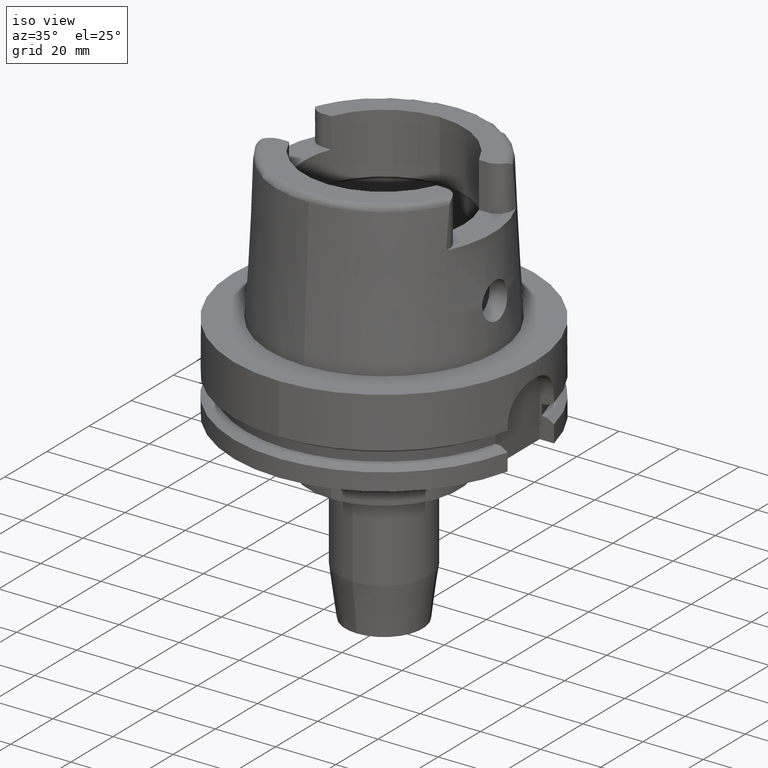
[diagram: clean part render]
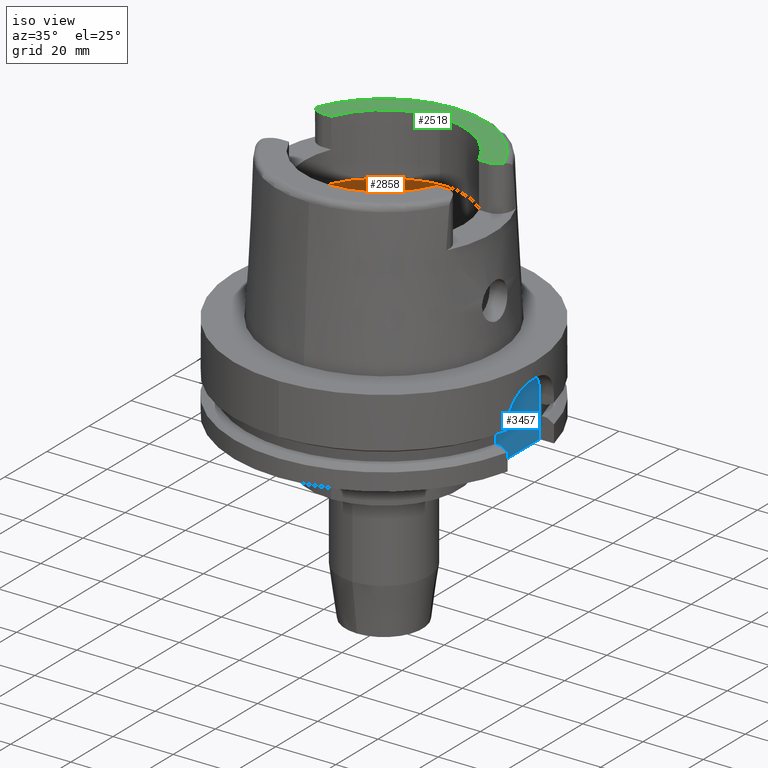
[diagram: same view with three faces highlighted in distinct colors, each labeled with its STEP entity id]
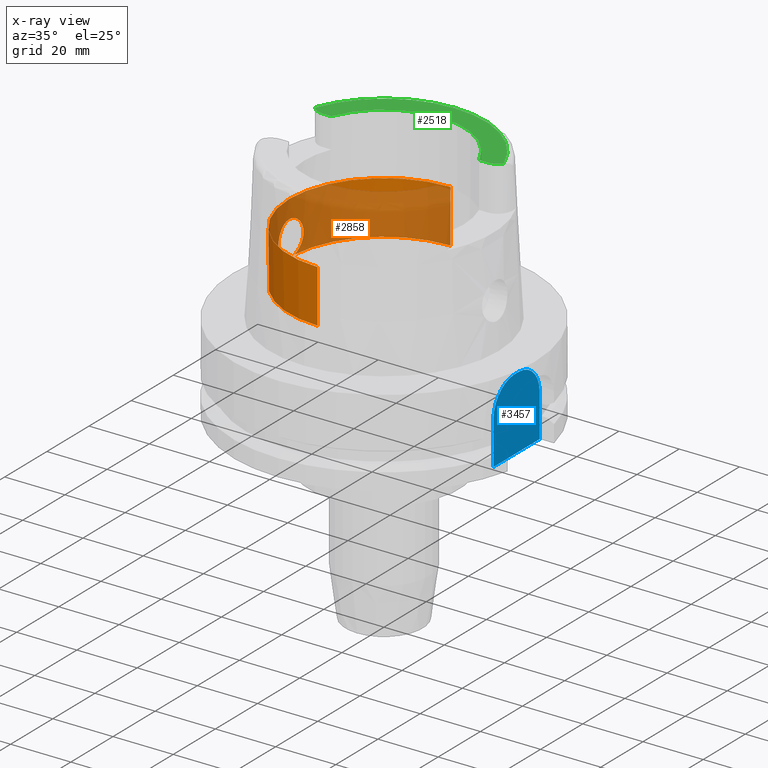
[diagram: x-ray of the same camera — body ghosted, the three highlighted faces saturated]
A machine part, iso view with three faces highlighted in distinct colors.
The next image is the same camera in x-ray (body ghosted, the three faces saturated) — at least one of them is partly hidden behind the body in this view.
Their STEP definitions:

[orange] entity #2858 — the highlighted cylindrical surface (partial cylindrical patch) has radius 31.5 mm, axis along (0, 0, 1).
#548=CARTESIAN_POINT('',(0.E0,0.E0,2.711662432703E1));
#549=DIRECTION('',(0.E0,0.E0,1.E0));
#550=DIRECTION('',(0.E0,1.E0,0.E0));
#551=AXIS2_PLACEMENT_3D('',#548,#549,#550);
#571=CARTESIAN_POINT('',(-3.15E1,0.E0,2.1E1));
#572=CARTESIAN_POINT('',(-3.15E1,-5.028532056707E-1,2.1E1));
#573=CARTESIAN_POINT('',(-3.147635693276E1,-1.477318983451E0,2.087767610122E1));
#574=CARTESIAN_POINT('',(-3.137748643580E1,-2.881225018081E0,2.033448291085E1));
#575=CARTESIAN_POINT('',(-3.123752490984E1,-4.108909748463E0,1.945786671436E1));
#576=CARTESIAN_POINT('',(-3.109048665438E1,-5.085308316507E0,1.830165228897E1));
#577=CARTESIAN_POINT('',(-3.097325566486E1,-5.742860613084E0,1.694118478400E1));
#578=CARTESIAN_POINT('',(-3.091493840308E1,-6.042620727541E0,1.547624908147E1));
#579=CARTESIAN_POINT('',(-3.092830792269E1,-5.975339359442E0,1.398264399200E1));
#580=CARTESIAN_POINT('',(-3.100981190959E1,-5.546015321639E0,1.255499961413E1));
#581=CARTESIAN_POINT('',(-3.114018807492E1,-4.778537339485E0,1.126832000287E1));
#582=CARTESIAN_POINT('',(-3.128904325051E1,-3.703317123115E0,1.020163221635E1));
#583=CARTESIAN_POINT('',(-3.137382618639E1,-2.854860646541E0,9.698448159666E0));
#584=CARTESIAN_POINT('',(-3.140918884336E1,-2.390158196044E0,9.496624327026E0));
#589=DIRECTION('',(0.E0,4.980251297750E-14,1.E0));
#590=VECTOR('',#589,1.762E1);
#591=CARTESIAN_POINT('',(0.E0,-3.15E1,9.496624327026E0));
#592=LINE('',#591,#590);
#596=CARTESIAN_POINT('',(-3.140918884336E1,2.390158196044E0,9.496624327026E0));
#597=CARTESIAN_POINT('',(-3.137368194211E1,2.856756167822E0,9.699271399073E0));
#598=CARTESIAN_POINT('',(-3.128852161057E1,3.708063163374E0,1.020475727012E1));
#599=CARTESIAN_POINT('',(-3.113914031352E1,4.785404064154E0,1.127652107333E1));
#600=CARTESIAN_POINT('',(-3.100870291288E1,5.552129335929E0,1.256819141113E1));
#601=CARTESIAN_POINT('',(-3.092768516395E1,5.978501280126E0,1.400010405144E1));
#602=CARTESIAN_POINT('',(-3.091523044570E1,6.041157802764E0,1.549577584156E1));
#603=CARTESIAN_POINT('',(-3.097449795885E1,5.736305879417E0,1.696054205435E1));
#604=CARTESIAN_POINT('',(-3.109231256700E1,5.074330839424E0,1.831827859569E1));
#605=CARTESIAN_POINT('',(-3.123925705619E1,4.095793916094E0,1.946956816706E1));
#606=CARTESIAN_POINT('',(-3.137856584299E1,2.869018412907E0,2.034059590541E1));
#607=CARTESIAN_POINT('',(-3.147662931804E1,1.469573877626E0,2.087907033856E1));
#608=CARTESIAN_POINT('',(-3.15E1,4.999369039843E-1,2.1E1));
#609=CARTESIAN_POINT('',(-3.15E1,0.E0,2.1E1));
#648=CARTESIAN_POINT('',(0.E0,0.E0,9.496624327026E0));
#649=DIRECTION('',(0.E0,0.E0,-1.E0));
#650=DIRECTION('',(-9.971171061384E-1,7.587803796965E-2,0.E0));
#651=AXIS2_PLACEMENT_3D('',#648,#649,#650);
#672=CARTESIAN_POINT('',(0.E0,0.E0,9.496624327026E0));
#673=DIRECTION('',(0.E0,0.E0,-1.E0));
#674=DIRECTION('',(0.E0,-1.E0,0.E0));
#675=AXIS2_PLACEMENT_3D('',#672,#673,#674);
#775=DIRECTION('',(0.E0,-4.980251297750E-14,1.E0));
#776=VECTOR('',#775,1.762E1);
#777=CARTESIAN_POINT('',(0.E0,3.15E1,9.496624327026E0));
#778=LINE('',#777,#776);
#2267=CARTESIAN_POINT('',(0.E0,3.15E1,2.711662432703E1));
#2268=VERTEX_POINT('',#2267);
#2269=CARTESIAN_POINT('',(0.E0,-3.15E1,2.711662432703E1));
#2270=VERTEX_POINT('',#2269);
#2271=VERTEX_POINT('',#571);
#2272=VERTEX_POINT('',#584);
#2273=CARTESIAN_POINT('',(0.E0,-3.15E1,9.496624327026E0));
#2274=VERTEX_POINT('',#2273);
#2275=CARTESIAN_POINT('',(0.E0,3.15E1,9.496624327026E0));
#2276=VERTEX_POINT('',#2275);
#2277=CARTESIAN_POINT('',(-3.140918884336E1,2.390158196044E0,9.496624327026E0));
#2278=VERTEX_POINT('',#2277);
#2838=CARTESIAN_POINT('',(0.E0,0.E0,-9.7E1));
#2839=DIRECTION('',(0.E0,0.E0,1.E0));
#2840=DIRECTION('',(0.E0,1.E0,0.E0));
#2841=AXIS2_PLACEMENT_3D('',#2838,#2839,#2840);
#2842=CYLINDRICAL_SURFACE('',#2841,3.15E1);
#2844=ORIENTED_EDGE('',*,*,#2843,.T.);
#2846=ORIENTED_EDGE('',*,*,#2845,.F.);
#2848=ORIENTED_EDGE('',*,*,#2847,.T.);
#2849=ORIENTED_EDGE('',*,*,#2831,.F.);
#2851=ORIENTED_EDGE('',*,*,#2850,.F.);
#2853=ORIENTED_EDGE('',*,*,#2852,.F.);
#2855=ORIENTED_EDGE('',*,*,#2854,.T.);
#2856=EDGE_LOOP('',(#2844,#2846,#2848,#2849,#2851,#2853,#2855));
#2857=FACE_OUTER_BOUND('',#2856,.F.);
#552=CIRCLE('',#551,3.15E1);
#585=B_SPLINE_CURVE_WITH_KNOTS('',3,(#571,#572,#573,#574,#575,#576,#577,#578,
#579,#580,#581,#582,#583,#584),.UNSPECIFIED.,.F.,.F.,(4,1,1,1,1,1,1,1,1,1,1,4),(
0.E0,9.090909090909E-2,1.818181818182E-1,2.727272727273E-1,3.636363636364E-1,
4.545454545455E-1,5.454545454545E-1,6.363636363636E-1,7.272727272727E-1,
8.181818181818E-1,9.090909090909E-1,1.E0),.UNSPECIFIED.);
#610=B_SPLINE_CURVE_WITH_KNOTS('',3,(#596,#597,#598,#599,#600,#601,#602,#603,
#604,#605,#606,#607,#608,#609),.UNSPECIFIED.,.F.,.F.,(4,1,1,1,1,1,1,1,1,1,1,4),(
0.E0,9.090909090909E-2,1.818181818182E-1,2.727272727273E-1,3.636363636364E-1,
4.545454545455E-1,5.454545454545E-1,6.363636363636E-1,7.272727272727E-1,
8.181818181818E-1,9.090909090909E-1,1.E0),.UNSPECIFIED.);
#652=CIRCLE('',#651,3.15E1);
#676=CIRCLE('',#675,3.15E1);
#2831=EDGE_CURVE('',#2268,#2270,#552,.T.);
#2843=EDGE_CURVE('',#2271,#2272,#585,.T.);
#2845=EDGE_CURVE('',#2274,#2272,#676,.T.);
#2847=EDGE_CURVE('',#2274,#2270,#592,.T.);
#2850=EDGE_CURVE('',#2276,#2268,#778,.T.);
#2852=EDGE_CURVE('',#2278,#2276,#652,.T.);
#2854=EDGE_CURVE('',#2278,#2271,#610,.T.);
#2858=ADVANCED_FACE('',(#2857),#2842,.F.);

[blue] entity #3457 — the highlighted planar face has unit normal (1, 0, 0).
#1290=DIRECTION('',(0.E0,-1.E0,0.E0));
#1291=VECTOR('',#1290,2.2E1);
#1292=CARTESIAN_POINT('',(4.4E1,1.1E1,-2.9E1));
#1293=LINE('',#1292,#1291);
#1297=DIRECTION('',(0.E0,0.E0,1.E0));
#1298=VECTOR('',#1297,1.4E1);
#1299=CARTESIAN_POINT('',(4.4E1,-1.1E1,-2.9E1));
#1300=LINE('',#1299,#1298);
#1304=CARTESIAN_POINT('',(4.4E1,-1.E0,-1.5E1));
#1305=DIRECTION('',(-1.E0,0.E0,0.E0));
#1306=DIRECTION('',(0.E0,-1.E0,0.E0));
#1307=AXIS2_PLACEMENT_3D('',#1304,#1305,#1306);
#1312=DIRECTION('',(0.E0,1.E0,0.E0));
#1313=VECTOR('',#1312,2.E0);
#1314=CARTESIAN_POINT('',(4.4E1,-1.E0,-5.E0));
#1315=LINE('',#1314,#1313);
#1319=CARTESIAN_POINT('',(4.4E1,1.E0,-1.5E1));
#1320=DIRECTION('',(-1.E0,0.E0,0.E0));
#1321=DIRECTION('',(0.E0,2.084998840246E-14,1.E0));
#1322=AXIS2_PLACEMENT_3D('',#1319,#1320,#1321);
#1327=DIRECTION('',(0.E0,0.E0,-1.E0));
#1328=VECTOR('',#1327,1.4E1);
#1329=CARTESIAN_POINT('',(4.4E1,1.1E1,-1.5E1));
#1330=LINE('',#1329,#1328);
#2367=CARTESIAN_POINT('',(4.4E1,-1.1E1,-2.9E1));
#2368=VERTEX_POINT('',#2367);
#2369=CARTESIAN_POINT('',(4.4E1,1.1E1,-2.9E1));
#2370=VERTEX_POINT('',#2369);
#2489=CARTESIAN_POINT('',(4.4E1,1.E0,-5.E0));
#2490=VERTEX_POINT('',#2489);
#2491=CARTESIAN_POINT('',(4.4E1,-1.E0,-5.E0));
#2492=VERTEX_POINT('',#2491);
#2493=CARTESIAN_POINT('',(4.4E1,1.1E1,-1.5E1));
#2494=VERTEX_POINT('',#2493);
#2495=CARTESIAN_POINT('',(4.4E1,-1.1E1,-1.5E1));
#2496=VERTEX_POINT('',#2495);
#3440=CARTESIAN_POINT('',(4.4E1,0.E0,0.E0));
#3441=DIRECTION('',(1.E0,0.E0,0.E0));
#3442=DIRECTION('',(0.E0,0.E0,-1.E0));
#3443=AXIS2_PLACEMENT_3D('',#3440,#3441,#3442);
#3444=PLANE('',#3443);
#3445=ORIENTED_EDGE('',*,*,#3355,.T.);
#3447=ORIENTED_EDGE('',*,*,#3446,.T.);
#3449=ORIENTED_EDGE('',*,*,#3448,.T.);
#3451=ORIENTED_EDGE('',*,*,#3450,.T.);
#3453=ORIENTED_EDGE('',*,*,#3452,.T.);
#3454=ORIENTED_EDGE('',*,*,#3420,.T.);
#3455=EDGE_LOOP('',(#3445,#3447,#3449,#3451,#3453,#3454));
#3456=FACE_OUTER_BOUND('',#3455,.F.);
#1308=CIRCLE('',#1307,1.E1);
#1323=CIRCLE('',#1322,1.E1);
#3355=EDGE_CURVE('',#2370,#2368,#1293,.T.);
#3420=EDGE_CURVE('',#2494,#2370,#1330,.T.);
#3446=EDGE_CURVE('',#2368,#2496,#1300,.T.);
#3448=EDGE_CURVE('',#2496,#2492,#1308,.T.);
#3450=EDGE_CURVE('',#2492,#2490,#1315,.T.);
#3452=EDGE_CURVE('',#2490,#2494,#1323,.T.);
#3457=ADVANCED_FACE('',(#3456),#3444,.T.);

[green] entity #2518 — the highlighted planar face has unit normal (0, 0, 1).
#17=CARTESIAN_POINT('',(-2.737E1,1.489E1,5.E1));
#18=DIRECTION('',(0.E0,0.E0,-1.E0));
#19=DIRECTION('',(0.E0,-1.E0,0.E0));
#20=AXIS2_PLACEMENT_3D('',#17,#18,#19);
#26=CARTESIAN_POINT('',(0.E0,0.E0,5.E1));
#27=DIRECTION('',(0.E0,0.E0,-1.E0));
#28=DIRECTION('',(-9.332215253018E-1,3.593015233942E-1,0.E0));
#29=AXIS2_PLACEMENT_3D('',#26,#27,#28);
#34=CARTESIAN_POINT('',(2.737E1,1.489E1,5.E1));
#35=DIRECTION('',(0.E0,0.E0,-1.E0));
#36=DIRECTION('',(8.163632566569E-1,-5.775387720150E-1,0.E0));
#37=AXIS2_PLACEMENT_3D('',#34,#35,#36);
#42=CARTESIAN_POINT('',(0.E0,0.E0,5.E1));
#43=DIRECTION('',(0.E0,0.E0,1.E0));
#44=DIRECTION('',(9.259134021805E-1,3.777358490566E-1,0.E0));
#45=AXIS2_PLACEMENT_3D('',#42,#43,#44);
#50=CARTESIAN_POINT('',(0.E0,0.E0,5.E1));
#51=DIRECTION('',(0.E0,0.E0,1.E0));
#52=DIRECTION('',(0.E0,1.E0,0.E0));
#53=AXIS2_PLACEMENT_3D('',#50,#51,#52);
#72=DIRECTION('',(1.E0,1.429464217237E-13,0.E0));
#73=VECTOR('',#72,2.833294842218E0);
#74=CARTESIAN_POINT('',(-2.737E1,1.001E1,5.E1));
#75=LINE('',#74,#73);
#2092=DIRECTION('',(1.E0,-1.423194637337E-13,0.E0));
#2093=VECTOR('',#2092,2.833294842218E0);
#2094=CARTESIAN_POINT('',(2.453670515778E1,1.001E1,5.E1));
#2095=LINE('',#2094,#2093);
#2181=CARTESIAN_POINT('',(-2.737E1,1.001E1,5.E1));
#2182=CARTESIAN_POINT('',(-3.135385269249E1,1.207161079257E1,5.E1));
#2183=VERTEX_POINT('',#2181);
#2184=VERTEX_POINT('',#2182);
#2185=CARTESIAN_POINT('',(3.135385269249E1,1.207161079257E1,5.E1));
#2186=VERTEX_POINT('',#2185);
#2187=CARTESIAN_POINT('',(2.737E1,1.001E1,5.E1));
#2188=VERTEX_POINT('',#2187);
#2189=CARTESIAN_POINT('',(2.453670515778E1,1.001E1,5.E1));
#2190=VERTEX_POINT('',#2189);
#2191=CARTESIAN_POINT('',(0.E0,2.65E1,5.E1));
#2192=VERTEX_POINT('',#2191);
#2193=CARTESIAN_POINT('',(-2.453670515778E1,1.001E1,5.E1));
#2194=VERTEX_POINT('',#2193);
#2497=CARTESIAN_POINT('',(0.E0,0.E0,5.E1));
#2498=DIRECTION('',(0.E0,0.E0,1.E0));
#2499=DIRECTION('',(0.E0,1.E0,0.E0));
#2500=AXIS2_PLACEMENT_3D('',#2497,#2498,#2499);
#2501=PLANE('',#2500);
#2503=ORIENTED_EDGE('',*,*,#2502,.T.);
#2505=ORIENTED_EDGE('',*,*,#2504,.T.);
#2507=ORIENTED_EDGE('',*,*,#2506,.T.);
#2509=ORIENTED_EDGE('',*,*,#2508,.F.);
#2511=ORIENTED_EDGE('',*,*,#2510,.T.);
#2513=ORIENTED_EDGE('',*,*,#2512,.T.);
#2515=ORIENTED_EDGE('',*,*,#2514,.F.);
#2516=EDGE_LOOP('',(#2503,#2505,#2507,#2509,#2511,#2513,#2515));
#2517=FACE_OUTER_BOUND('',#2516,.F.);
#21=CIRCLE('',#20,4.88E0);
#30=CIRCLE('',#29,3.359743838136E1);
#38=CIRCLE('',#37,4.88E0);
#46=CIRCLE('',#45,2.65E1);
#54=CIRCLE('',#53,2.65E1);
#2502=EDGE_CURVE('',#2183,#2184,#21,.T.);
#2504=EDGE_CURVE('',#2184,#2186,#30,.T.);
#2506=EDGE_CURVE('',#2186,#2188,#38,.T.);
#2508=EDGE_CURVE('',#2190,#2188,#2095,.T.);
#2510=EDGE_CURVE('',#2190,#2192,#46,.T.);
#2512=EDGE_CURVE('',#2192,#2194,#54,.T.);
#2514=EDGE_CURVE('',#2183,#2194,#75,.T.);
#2518=ADVANCED_FACE('',(#2517),#2501,.T.);